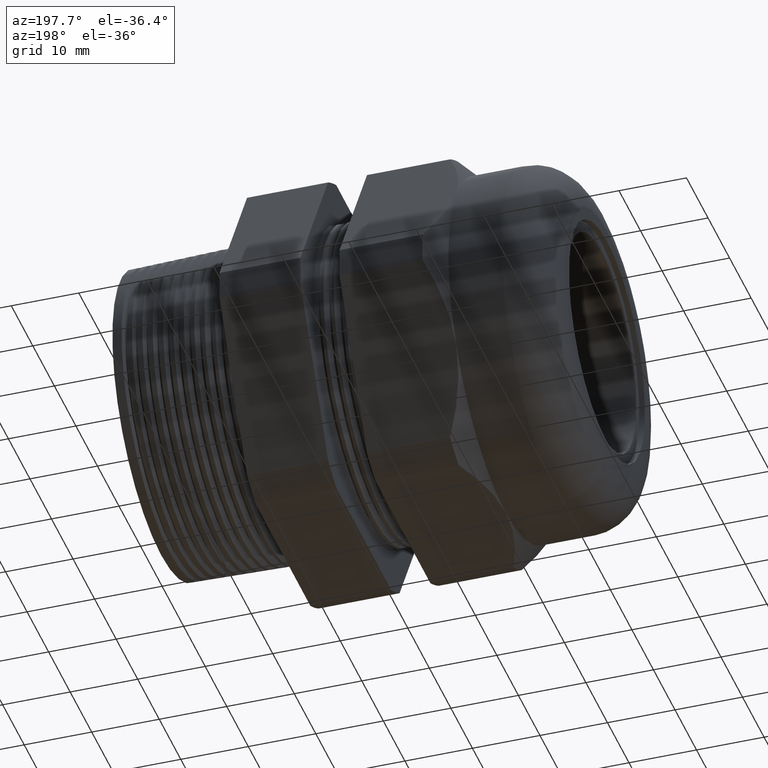
[diagram: clean part render]
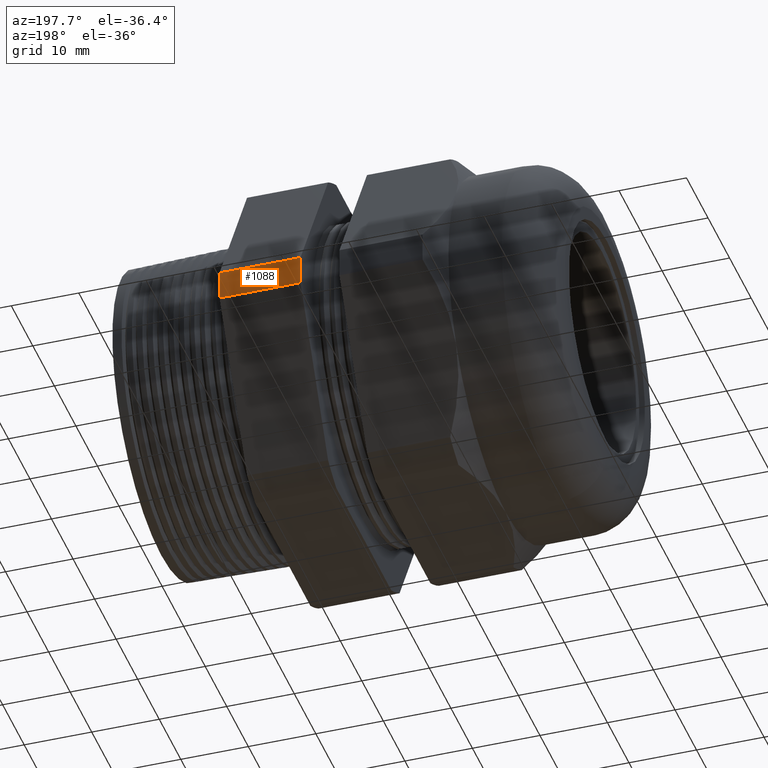
[diagram: same view with one face highlighted and labeled with its STEP entity id]
A machine part, auxiliary view. The second image highlights one B-rep face of the part: STEP entity #1088.
In plain terms, the highlighted cylindrical surface (partial cylindrical patch) has radius 29.4627 mm, axis along (-1, 0, 0).
Its self-contained STEP definition (entity closure, byte-faithful):
#41 = EDGE_CURVE ( 'NONE', #44, #4137, #1325, .T. ) ;
#44 = VERTEX_POINT ( 'NONE', #1320 ) ;
#578 = VERTEX_POINT ( 'NONE', #2299 ) ;
#579 = EDGE_CURVE ( 'NONE', #44, #578, #2298, .T. ) ;
#794 = VERTEX_POINT ( 'NONE', #2687 ) ;
#803 = EDGE_CURVE ( 'NONE', #4137, #794, #2681, .T. ) ;
#1088 = ADVANCED_FACE ( 'NONE', ( #3261 ), #3259, .T. ) ;
#1089 = EDGE_LOOP ( 'NONE', ( #1090, #1091, #1092, #1093 ) ) ;
#1090 = ORIENTED_EDGE ( 'NONE', *, *, #803, .F. ) ;
#1091 = ORIENTED_EDGE ( 'NONE', *, *, #41, .F. ) ;
#1092 = ORIENTED_EDGE ( 'NONE', *, *, #579, .T. ) ;
#1093 = ORIENTED_EDGE ( 'NONE', *, *, #1094, .F. ) ;
#1094 = EDGE_CURVE ( 'NONE', #794, #578, #3254, .T. ) ;
#1320 = CARTESIAN_POINT ( 'NONE',  ( -0.3100000000000000000, 1.156720106887058100, -0.08650200473511392200 ) ) ;
#1321 = DIRECTION ( 'NONE',  ( 0.0000000000000000000, 0.0000000000000000000, -1.000000000000000000 ) ) ;
#1322 = DIRECTION ( 'NONE',  ( 1.000000000000000000, 0.0000000000000000000, 0.0000000000000000000 ) ) ;
#1323 = CARTESIAN_POINT ( 'NONE',  ( -0.3100000000000000000, 0.0000000000000000000, 0.0000000000000000000 ) ) ;
#1324 = AXIS2_PLACEMENT_3D ( 'NONE', #1323, #1322, #1321 ) ;
#1325 = CIRCLE ( 'NONE', #1324, 1.159950000000000000 ) ;
#2295 = DIRECTION ( 'NONE',  ( -1.000000000000000000, 0.0000000000000000000, 0.0000000000000000000 ) ) ;
#2296 = VECTOR ( 'NONE', #2295, 39.37007874015748100 ) ;
#2297 = CARTESIAN_POINT ( 'NONE',  ( 0.4000000000000000800, 1.156720106887057800, -0.08650200473511394900 ) ) ;
#2298 = LINE ( 'NONE', #2297, #2296 ) ;
#2299 = CARTESIAN_POINT ( 'NONE',  ( -0.7824399999999998000, 1.156720106887057800, -0.08650200473511394900 ) ) ;
#2678 = DIRECTION ( 'NONE',  ( -1.000000000000000000, 0.0000000000000000000, 0.0000000000000000000 ) ) ;
#2679 = VECTOR ( 'NONE', #2678, 39.37007874015748100 ) ;
#2680 = CARTESIAN_POINT ( 'NONE',  ( 0.4000000000000000800, 1.156720106887057600, 0.08650200473511453200 ) ) ;
#2681 = LINE ( 'NONE', #2680, #2679 ) ;
#2687 = CARTESIAN_POINT ( 'NONE',  ( -0.7824399999999998000, 1.156720106887057600, 0.08650200473511453200 ) ) ;
#3251 = DIRECTION ( 'NONE',  ( 0.0000000000000000000, 0.0000000000000000000, 1.000000000000000000 ) ) ;
#3252 = DIRECTION ( 'NONE',  ( -1.000000000000000000, 0.0000000000000000000, 0.0000000000000000000 ) ) ;
#3253 = AXIS2_PLACEMENT_3D ( 'NONE', #3260, #3252, #3251 ) ;
#3254 = CIRCLE ( 'NONE', #3253, 1.159950000000000000 ) ;
#3255 = DIRECTION ( 'NONE',  ( 0.0000000000000000000, 0.0000000000000000000, 1.000000000000000000 ) ) ;
#3256 = DIRECTION ( 'NONE',  ( -1.000000000000000000, 0.0000000000000000000, 0.0000000000000000000 ) ) ;
#3257 = CARTESIAN_POINT ( 'NONE',  ( 0.4000000000000000800, 0.0000000000000000000, 0.0000000000000000000 ) ) ;
#3258 = AXIS2_PLACEMENT_3D ( 'NONE', #3257, #3256, #3255 ) ;
#3259 = CYLINDRICAL_SURFACE ( 'NONE', #3258, 1.159950000000000000 ) ;
#3260 = CARTESIAN_POINT ( 'NONE',  ( -0.7824400000000001400, 0.0000000000000000000, 0.0000000000000000000 ) ) ;
#3261 = FACE_OUTER_BOUND ( 'NONE', #1089, .T. ) ;
#3780 = CARTESIAN_POINT ( 'NONE',  ( -0.3099999999999997200, 1.156720106887057600, 0.08650200473511453200 ) ) ;
#4137 = VERTEX_POINT ( 'NONE', #3780 ) ;